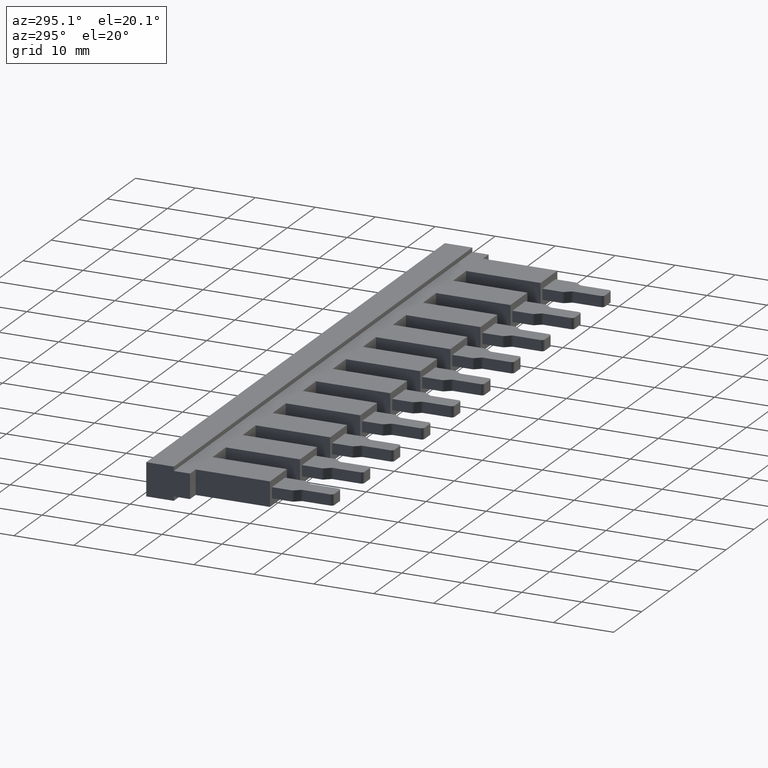
[diagram: clean part render]
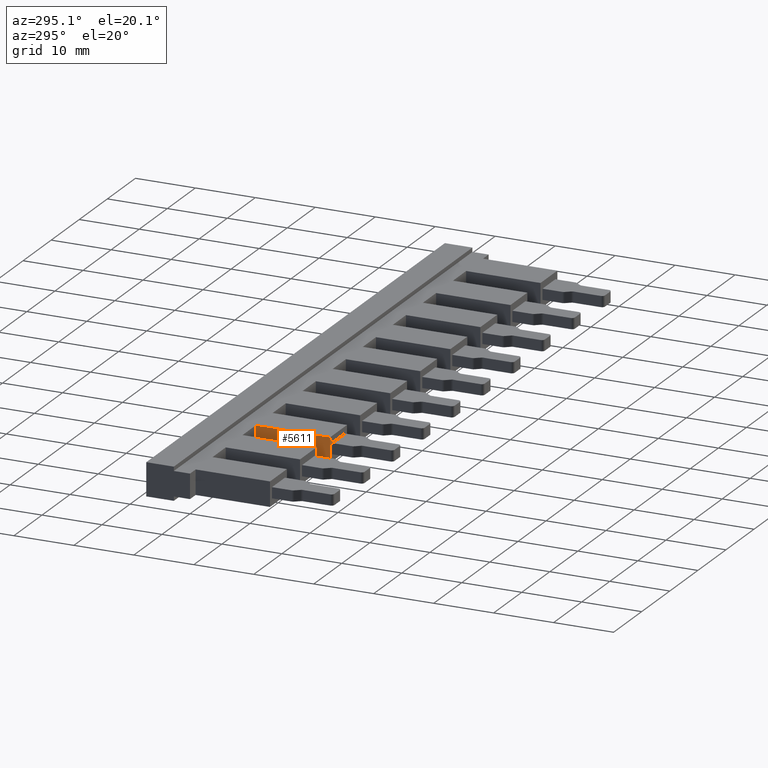
[diagram: same view with one face highlighted and labeled with its STEP entity id]
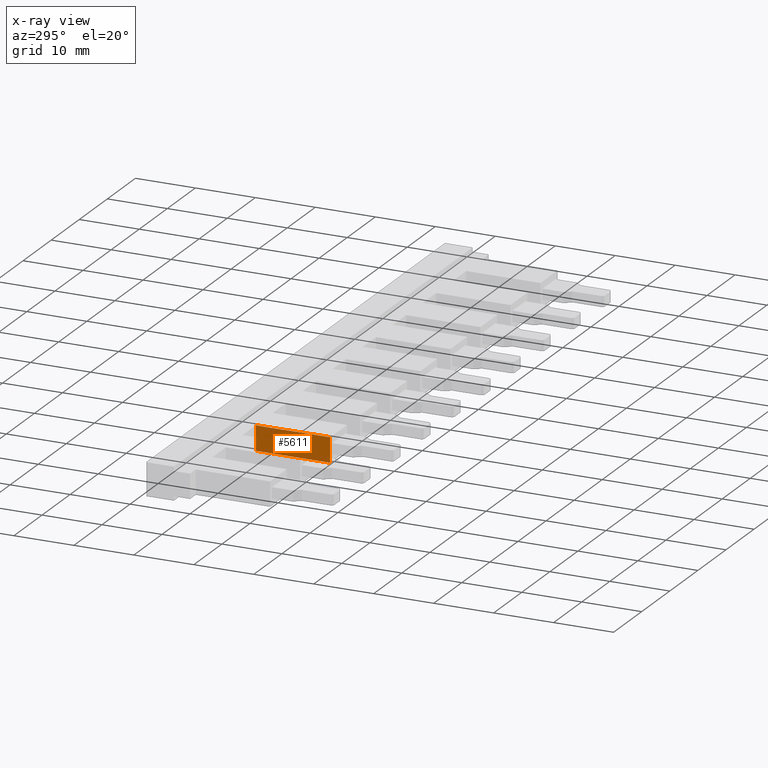
[diagram: x-ray of the same camera — body ghosted, the highlighted face saturated]
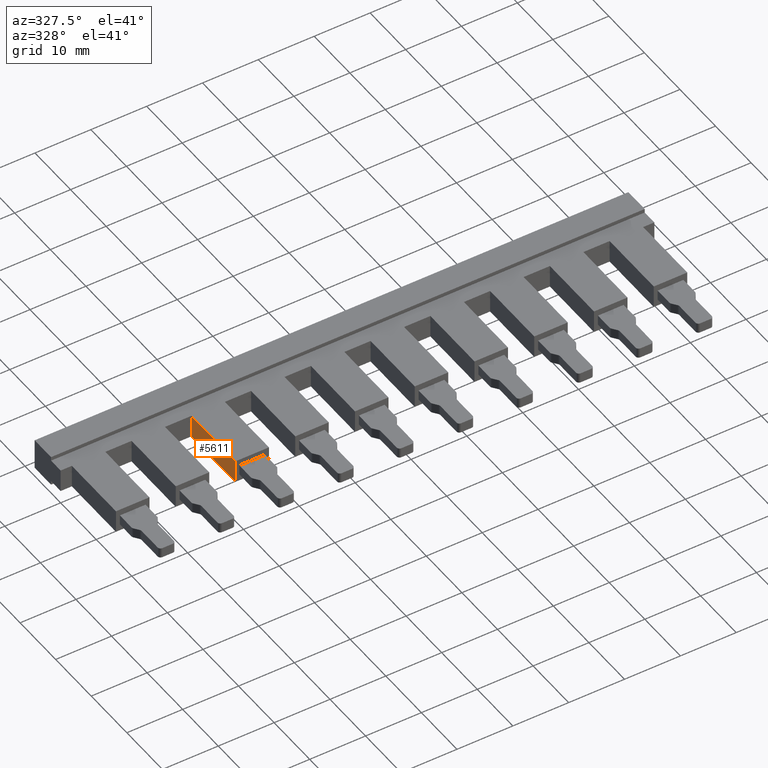
[diagram: same view with one face highlighted and labeled with its STEP entity id]
A machine part, auxiliary view. The second image highlights one B-rep face of the part: STEP entity #5611.
The next image is the same camera in x-ray: the body ghosted, the highlighted face saturated — about 0% of this face is hidden behind the body in this view.
A second angle (auxiliary view) of the same face is appended — the face is thin or edge-on in the first view.
In plain terms, the highlighted planar face has unit normal (1, -0, 0).
Its self-contained STEP definition (entity closure, byte-faithful):
#557 = PLANE ( 'NONE',  #1098 ) ;
#571 = DIRECTION ( 'NONE',  ( 0.0000000000000000000, 0.0000000000000000000, -1.000000000000000000 ) ) ;
#584 = CARTESIAN_POINT ( 'NONE',  ( 23.39999999999999900, -12.49999999999999800, 4.100000000000000500 ) ) ;
#585 = FACE_OUTER_BOUND ( 'NONE', #2201, .T. ) ;
#586 = DIRECTION ( 'NONE',  ( 1.000000000000000000, -0.0000000000000000000, 0.0000000000000000000 ) ) ;
#1098 = AXIS2_PLACEMENT_3D ( 'NONE', #584, #586, #571 ) ;
#1350 = VECTOR ( 'NONE', #2455, 1000.000000000000000 ) ;
#1398 = VECTOR ( 'NONE', #2583, 1000.000000000000000 ) ;
#1443 = VECTOR ( 'NONE', #3488, 1000.000000000000000 ) ;
#1459 = VECTOR ( 'NONE', #3433, 1000.000000000000000 ) ;
#2201 = EDGE_LOOP ( 'NONE', ( #6439, #6408, #6507, #6426 ) ) ;
#2443 = LINE ( 'NONE', #2447, #1350 ) ;
#2447 = CARTESIAN_POINT ( 'NONE',  ( 23.39999999999999900, 1.856154119295185200E-015, 4.100000000000000500 ) ) ;
#2455 = DIRECTION ( 'NONE',  ( -0.0000000000000000000, -0.0000000000000000000, 1.000000000000000000 ) ) ;
#2562 = LINE ( 'NONE', #2603, #1398 ) ;
#2583 = DIRECTION ( 'NONE',  ( -0.0000000000000000000, -1.000000000000000000, -0.0000000000000000000 ) ) ;
#2603 = CARTESIAN_POINT ( 'NONE',  ( 23.39999999999999900, -12.49999999999999800, 4.100000000000000500 ) ) ;
#3392 = LINE ( 'NONE', #3402, #1459 ) ;
#3402 = CARTESIAN_POINT ( 'NONE',  ( 23.39999999999999900, 4.173744683200197900E-015, 0.0000000000000000000 ) ) ;
#3433 = DIRECTION ( 'NONE',  ( 0.0000000000000000000, -1.000000000000000000, -0.0000000000000000000 ) ) ;
#3487 = CARTESIAN_POINT ( 'NONE',  ( 23.39999999999999900, -12.40000000000000000, 4.100000000000000500 ) ) ;
#3488 = DIRECTION ( 'NONE',  ( 0.0000000000000000000, 0.0000000000000000000, -1.000000000000000000 ) ) ;
#3505 = LINE ( 'NONE', #3487, #1443 ) ;
#4572 = CARTESIAN_POINT ( 'NONE',  ( 23.39999999999999900, 9.223609349453271000E-016, 0.0000000000000000000 ) ) ;
#4627 = CARTESIAN_POINT ( 'NONE',  ( 23.39999999999999900, 9.223609349453271000E-016, 4.100000000000000500 ) ) ;
#4633 = CARTESIAN_POINT ( 'NONE',  ( 23.39999999999999900, -12.40000000000000000, 4.100000000000000500 ) ) ;
#4715 = CARTESIAN_POINT ( 'NONE',  ( 23.39999999999999900, -12.40000000000000000, 0.0000000000000000000 ) ) ;
#5054 = EDGE_CURVE ( 'NONE', #5834, #5833, #2443, .T. ) ;
#5106 = EDGE_CURVE ( 'NONE', #5833, #5890, #2562, .T. ) ;
#5135 = EDGE_CURVE ( 'NONE', #5834, #5916, #3392, .T. ) ;
#5155 = EDGE_CURVE ( 'NONE', #5890, #5916, #3505, .T. ) ;
#5611 = ADVANCED_FACE ( 'NONE', ( #585 ), #557, .F. ) ;
#5833 = VERTEX_POINT ( 'NONE', #4627 ) ;
#5834 = VERTEX_POINT ( 'NONE', #4572 ) ;
#5890 = VERTEX_POINT ( 'NONE', #4633 ) ;
#5916 = VERTEX_POINT ( 'NONE', #4715 ) ;
#6408 = ORIENTED_EDGE ( 'NONE', *, *, #5106, .F. ) ;
#6426 = ORIENTED_EDGE ( 'NONE', *, *, #5135, .T. ) ;
#6439 = ORIENTED_EDGE ( 'NONE', *, *, #5155, .F. ) ;
#6507 = ORIENTED_EDGE ( 'NONE', *, *, #5054, .F. ) ;